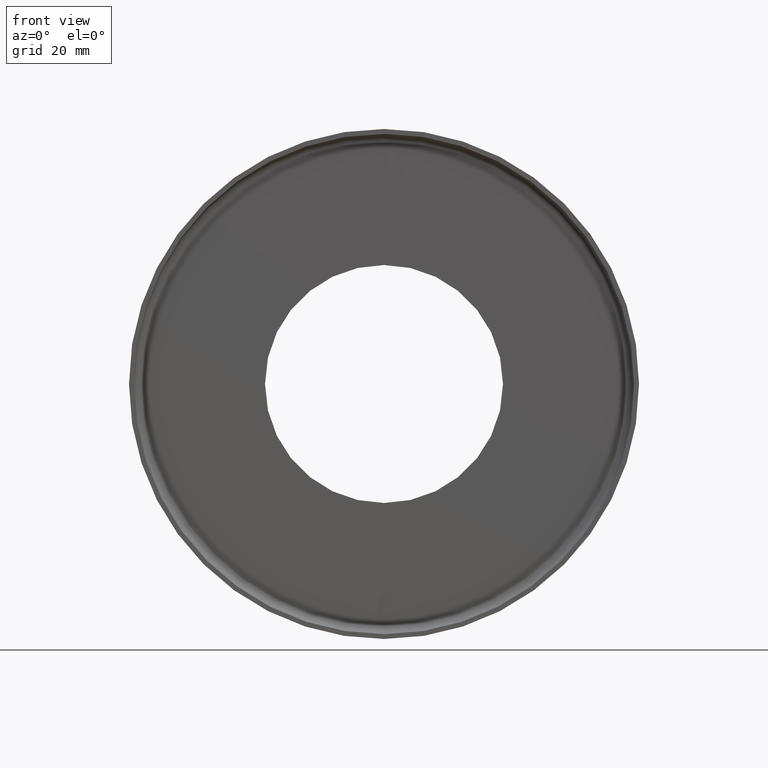
[diagram: clean part render]
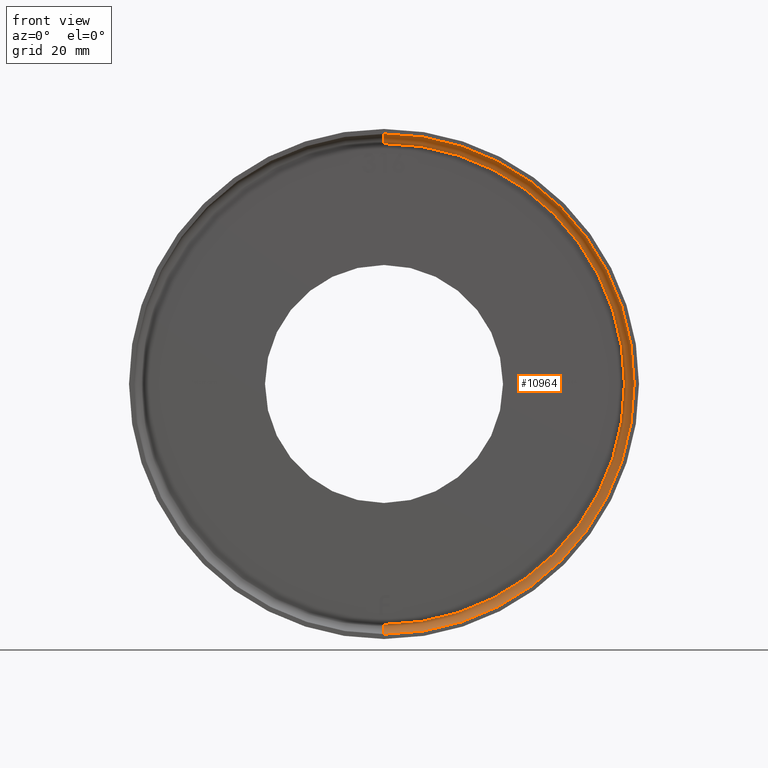
[diagram: same view with one face highlighted and labeled with its STEP entity id]
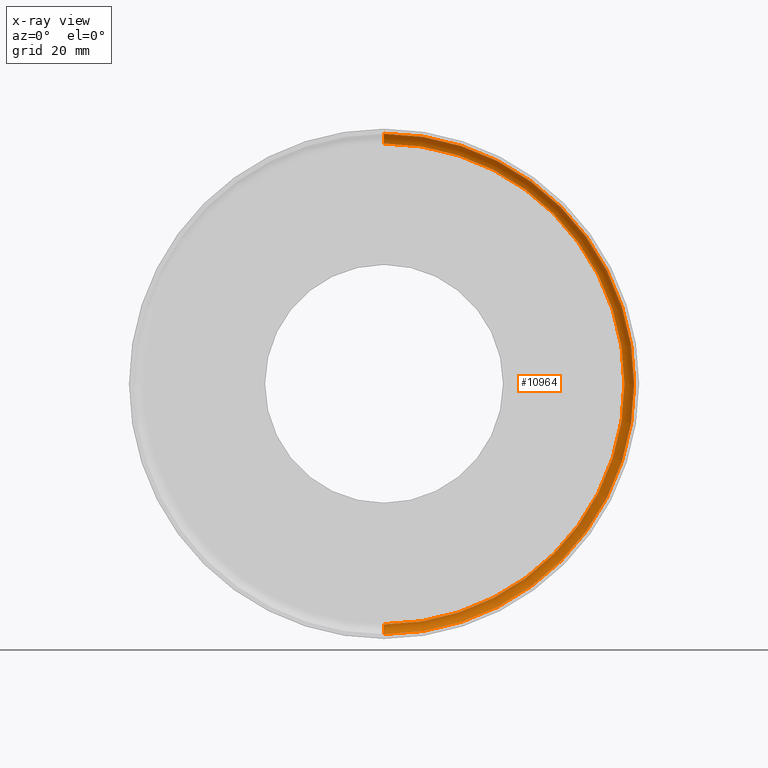
[diagram: x-ray of the same camera — body ghosted, the highlighted face saturated]
A machine part, front view. The second image highlights one B-rep face of the part: STEP entity #10964.
The next image is the same camera in x-ray: the body ghosted, the highlighted face saturated — about 0% of this face is hidden behind the body in this view.
In plain terms, the highlighted toroidal blend (fillet) surface has major radius 49.5 mm and minor (blend) radius 2 mm.
Its self-contained STEP definition (entity closure, byte-faithful):
#411 = ORIENTED_EDGE ( 'NONE', *, *, #5469, .F. ) ;
#454 = EDGE_LOOP ( 'NONE', ( #411, #2130, #1389, #10427 ) ) ;
#1062 = CIRCLE ( 'NONE', #11939, 51.50000000000000711 ) ;
#1389 = ORIENTED_EDGE ( 'NONE', *, *, #14046, .T. ) ;
#1528 = CARTESIAN_POINT ( 'NONE',  ( 0.000000000000000000, 22.00000000000000355, 0.000000000000000000 ) ) ;
#1899 = VERTEX_POINT ( 'NONE', #13379 ) ;
#2130 = ORIENTED_EDGE ( 'NONE', *, *, #13850, .F. ) ;
#2520 = DIRECTION ( 'NONE',  ( -1.000000000000000000, 0.000000000000000000, 0.000000000000000000 ) ) ;
#2614 = CARTESIAN_POINT ( 'NONE',  ( 0.000000000000000000, 22.00000000000000355, -49.50000000000000000 ) ) ;
#2630 = CARTESIAN_POINT ( 'NONE',  ( 0.000000000000000000, 24.00000000000000000, 0.000000000000000000 ) ) ;
#2726 = CIRCLE ( 'NONE', #9456, 2.000000000000001776 ) ;
#2796 = DIRECTION ( 'NONE',  ( 0.000000000000000000, 0.000000000000000000, -1.000000000000000000 ) ) ;
#2828 = DIRECTION ( 'NONE',  ( -0.000000000000000000, -1.000000000000000000, -0.000000000000000000 ) ) ;
#2851 = VERTEX_POINT ( 'NONE', #11965 ) ;
#3164 = TOROIDAL_SURFACE ( 'NONE', #10411, 49.50000000000000000, 2.000000000000000000 ) ;
#4733 = DIRECTION ( 'NONE',  ( -1.224646799147353454E-16, 0.000000000000000000, -1.000000000000000000 ) ) ;
#4904 = AXIS2_PLACEMENT_3D ( 'NONE', #2630, #2828, #5009 ) ;
#5009 = DIRECTION ( 'NONE',  ( 0.000000000000000000, 0.000000000000000000, -1.000000000000000000 ) ) ;
#5469 = EDGE_CURVE ( 'NONE', #1899, #14282, #2726, .T. ) ;
#5542 = CARTESIAN_POINT ( 'NONE',  ( 6.306931015608869596E-15, 22.00000000000000355, 51.50000000000000711 ) ) ;
#6524 = DIRECTION ( 'NONE',  ( -0.000000000000000000, -1.000000000000000000, -0.000000000000000000 ) ) ;
#6975 = AXIS2_PLACEMENT_3D ( 'NONE', #2614, #2520, #7057 ) ;
#6996 = DIRECTION ( 'NONE',  ( 1.000000000000000000, 0.000000000000000000, -1.224646799147353207E-16 ) ) ;
#7057 = DIRECTION ( 'NONE',  ( 0.000000000000000000, 0.000000000000000000, 1.000000000000000000 ) ) ;
#7288 = DIRECTION ( 'NONE',  ( -0.000000000000000000, -1.000000000000000000, -0.000000000000000000 ) ) ;
#9004 = VERTEX_POINT ( 'NONE', #13241 ) ;
#9456 = AXIS2_PLACEMENT_3D ( 'NONE', #10216, #6996, #4733 ) ;
#10216 = CARTESIAN_POINT ( 'NONE',  ( 6.062001655779398511E-15, 22.00000000000000355, 49.50000000000000000 ) ) ;
#10411 = AXIS2_PLACEMENT_3D ( 'NONE', #12219, #6524, #11077 ) ;
#10427 = ORIENTED_EDGE ( 'NONE', *, *, #11637, .T. ) ;
#10964 = ADVANCED_FACE ( 'NONE', ( #13546 ), #3164, .F. ) ;
#11077 = DIRECTION ( 'NONE',  ( 0.000000000000000000, 0.000000000000000000, -1.000000000000000000 ) ) ;
#11637 = EDGE_CURVE ( 'NONE', #2851, #14282, #1062, .T. ) ;
#11861 = CIRCLE ( 'NONE', #4904, 49.50000000000000000 ) ;
#11939 = AXIS2_PLACEMENT_3D ( 'NONE', #1528, #7288, #2796 ) ;
#11965 = CARTESIAN_POINT ( 'NONE',  ( 0.000000000000000000, 22.00000000000000355, -51.50000000000000711 ) ) ;
#12219 = CARTESIAN_POINT ( 'NONE',  ( 0.000000000000000000, 22.00000000000000355, 0.000000000000000000 ) ) ;
#13086 = CIRCLE ( 'NONE', #6975, 2.000000000000001776 ) ;
#13241 = CARTESIAN_POINT ( 'NONE',  ( 0.000000000000000000, 24.00000000000000000, -49.50000000000000000 ) ) ;
#13379 = CARTESIAN_POINT ( 'NONE',  ( 6.184466335694133659E-15, 24.00000000000000000, 49.50000000000000000 ) ) ;
#13546 = FACE_OUTER_BOUND ( 'NONE', #454, .T. ) ;
#13850 = EDGE_CURVE ( 'NONE', #9004, #1899, #11861, .T. ) ;
#14046 = EDGE_CURVE ( 'NONE', #9004, #2851, #13086, .T. ) ;
#14282 = VERTEX_POINT ( 'NONE', #5542 ) ;